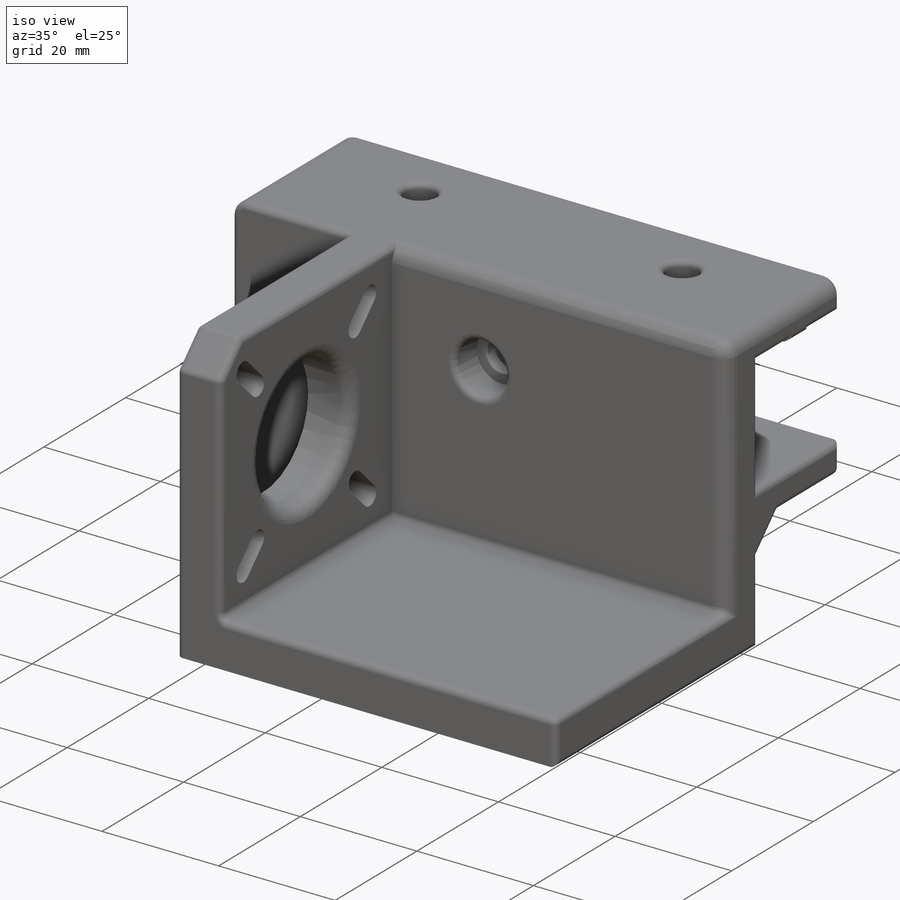
[diagram: iso view]
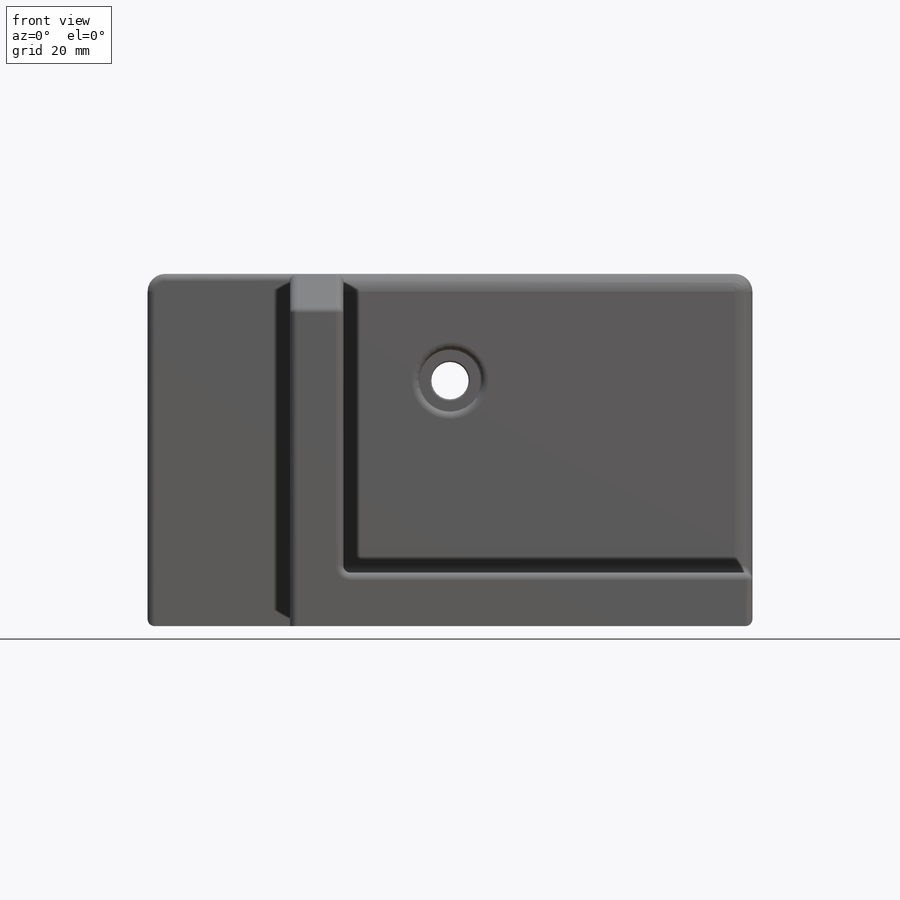
[diagram: front view]
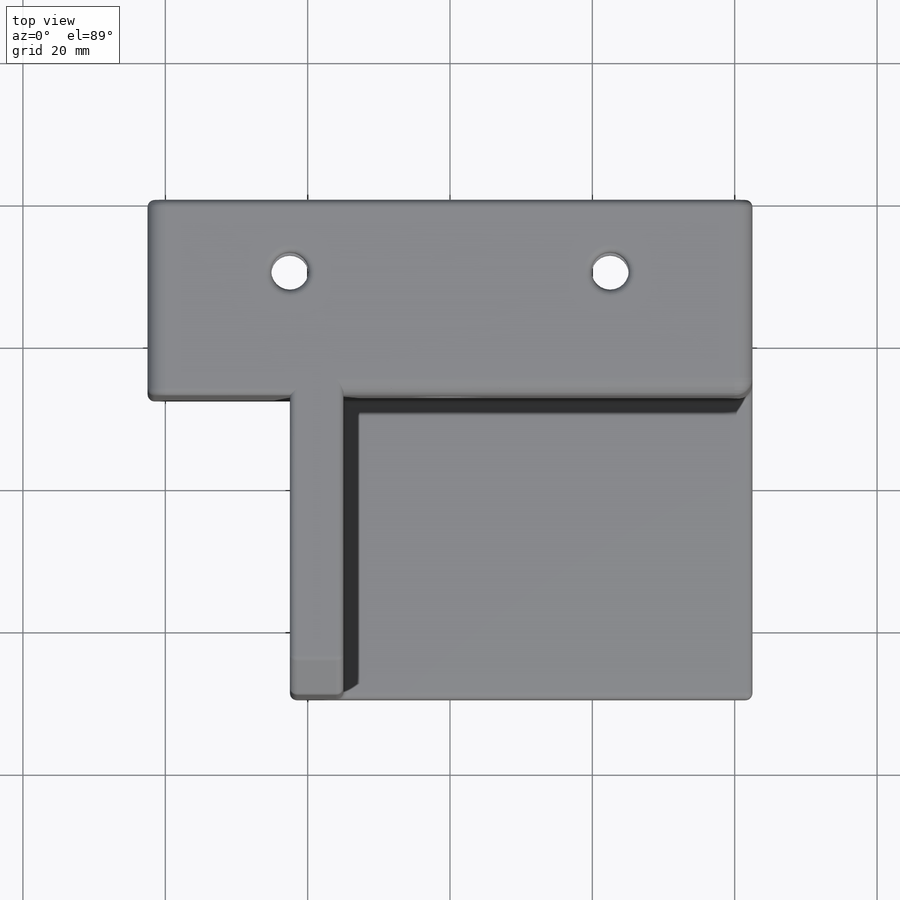
[diagram: top view]
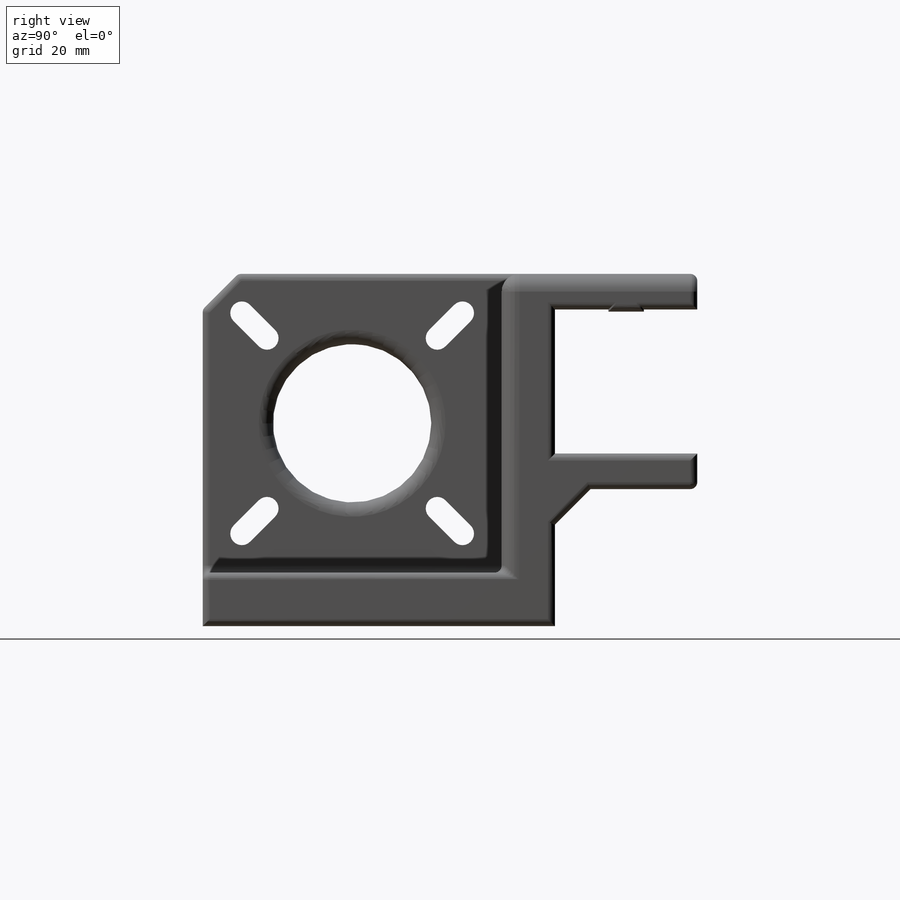
[diagram: right view]
SOLIDWORKS PART (.sldprt)
format: sldprt  version: not decoded by parser v0  size: 720,384 bytes
history: native  units: mm
features: sketch x15, fillet x12, cut_extrude x9, extrude x5, chamfer x2, material x1 (+13 scaffold rows collapsed)
feature tree (57):
  scaffold x13  (default folders/planes/origin — collapsed)
  material  "Material <not specified>"
  sketch  "Sketch2"  dims[D1=55.0mm D2=85.0mm]
  extrude  "Boss-Extrude1"  Depth=7.5mm
  sketch  "Sketch3"  dims[c1.D1=7.5mm c1.D2=7.5mm c2.D1=7.5mm c2.D2=7.5mm c2.D3=20.0mm]
  extrude  "Boss-Extrude5"  Depth=45mm
  sketch  "Sketch6"  dims[D1=31.0mm D2=31.0mm D3=42.0mm D4=42.0mm D5=5.0mm D6=5.0mm D7=6.0mm]
  cut_extrude  "Cut-Extrude2"  [1 undecoded]
  sketch  "Sketch7"  dims[c1.D5=3.1mm c1.D6=3.1mm c1.D7=3.1mm c1.D8=3.1mm c1.D1=5.0mm c1.D2=5.0mm c1.D3=31.0mm c2.D1=31.0mm c2.D2=5.0mm c2.D4=5.0mm c2.D5=5.0mm c2.D6=5.0mm c3.D2=5.0mm c3.D9=3.25mm c3.D10=3.25mm c3.D11=3.25mm c3.D12=3.25mm c3.D5=~20.487116mm c3.D6=~20.487116mm c4.D5=5.0mm c4.D6=5.0mm c4.D7=5.0mm c4.D8=5.0mm c4.D4=5.0mm c4.D3=31.0mm c5.D4=31.0mm]
  chamfer  "Chamfer1"  Distance=5mm Angle=45deg
  sketch  "Sketch8"  dims[D1=22.25mm]
  cut_extrude  "Cut-Extrude4"  [1 undecoded]
  fillet  "Fillet1"  Radius=2mm
  sketch  "Sketch9"
  cut_extrude  "Cut-Extrude5"  [1 undecoded]
  sketch  "Sketch10"
  cut_extrude  "Cut-Extrude6"  [1 undecoded]
  sketch  "Sketch11"  dims[D1=5.0mm]
  extrude  "Boss-Extrude6"  Depth=25mm
  sketch  "Sketch12"  dims[c1.D1=7.5mm c1.D2=12.5mm c2.D1=25.0mm c2.D2=0.0mm c2.D3=2.5mm c2.D4=25.0mm c3.D1=5.0mm c3.D3=5.0mm]
  extrude  "Boss-Extrude7"  Depth=0.3mm
  sketch  "Sketch15"  dims[D2=5.25mm D1=10.0mm]
  cut_extrude  "Cut-Extrude9"  [1 undecoded]
  sketch  "Sketch16"  dims[D1=8.75mm]
  cut_extrude  "Cut-Extrude10"  Depth=5.5mm
  fillet  "Fillet2"  Radius=1mm
  sketch  "Sketch17"  dims[D1=22.0mm D2=57.5mm]
  fillet  "Fillet5"  Radius=2.5mm
  fillet  "Fillet6"  Radius=2.5mm
  fillet  "Fillet8"  Radius=0.25mm
  fillet  "Fillet9"  Radius=2.5mm
  sketch  "Sketch18"  dims[D1=20.25mm D2=5.0mm]
  extrude  "Boss-Extrude8"  Depth=20mm
  cut_extrude  "Cut-Extrude12"  [1 undecoded]
  sketch  "Sketch20"  dims[D3=5.25mm D4=5.25mm D1=20.0mm D2=20.0mm]
  cut_extrude  "Cut-Extrude13"  [1 undecoded]
  fillet  "Fillet10"  Radius=1mm
  sketch  "Sketch21"  dims[D1=22.5mm]
  cut_extrude  "Cut-Extrude17"  [1 undecoded]
  chamfer  "Chamfer3"  Distance=5mm Angle=45deg
  fillet  "Fillet11"  Radius=1mm
  fillet  "Fillet12"  Radius=1mm
  fillet  "Fillet13"  Radius=1mm
  fillet  "Fillet14"  Radius=1mm
  fillet  "Fillet15"  Radius=1mm
decode coverage: 33 of 43 modeling features carry decoded parameters
note: ~ marks probable driven/reference dimensions
note: 8 parameter values undecoded
summary: no parameter record found for 8 features
note: suppression state not decoded; provenance and decode notes live in map.json
